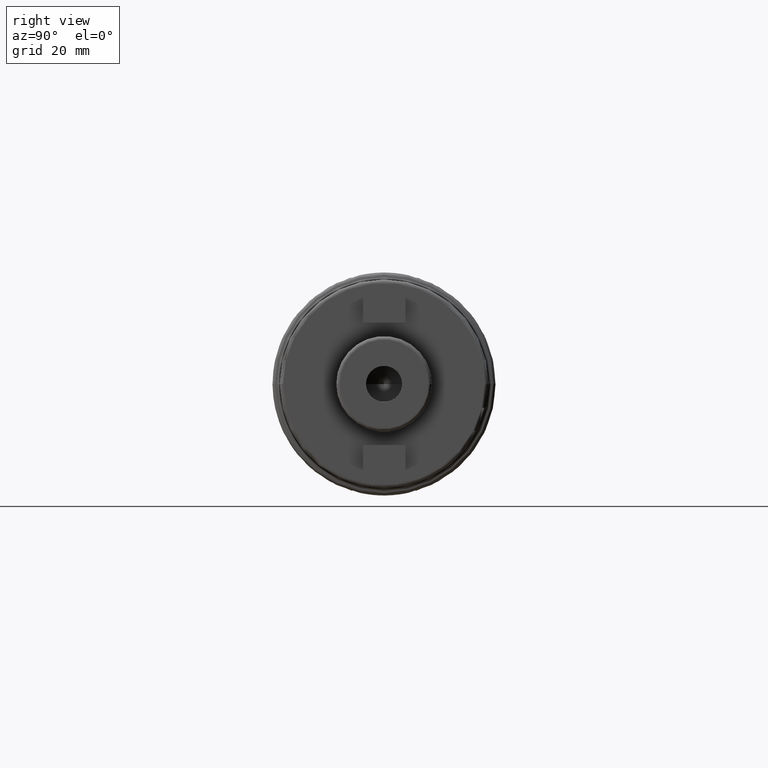
[diagram: clean part render]
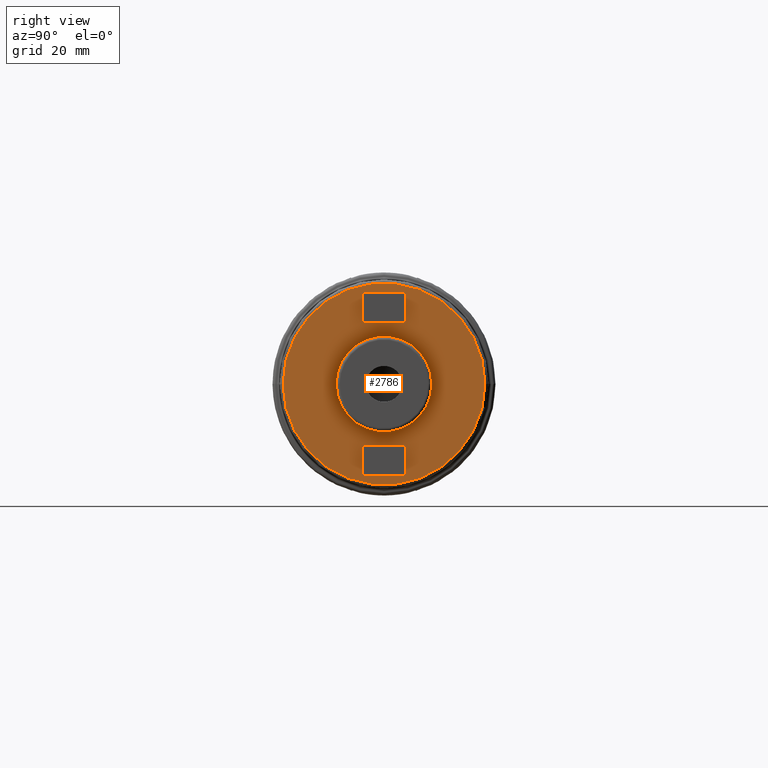
[diagram: same view with one face highlighted and labeled with its STEP entity id]
A machine part, right view. The second image highlights one B-rep face of the part: STEP entity #2786.
In plain terms, the highlighted planar face has unit normal (1, 0, 0).
Its self-contained STEP definition (entity closure, byte-faithful):
#884=CARTESIAN_POINT('',(1.E2,0.E0,0.E0));
#885=DIRECTION('',(1.E0,0.E0,0.E0));
#886=DIRECTION('',(0.E0,1.E0,0.E0));
#887=AXIS2_PLACEMENT_3D('',#884,#885,#886);
#889=CARTESIAN_POINT('',(1.E2,0.E0,0.E0));
#890=DIRECTION('',(-1.E0,0.E0,0.E0));
#891=DIRECTION('',(0.E0,1.E0,0.E0));
#892=AXIS2_PLACEMENT_3D('',#889,#890,#891);
#894=CARTESIAN_POINT('',(1.E2,0.E0,0.E0));
#895=DIRECTION('',(-1.E0,0.E0,0.E0));
#896=DIRECTION('',(0.E0,1.E0,0.E0));
#897=AXIS2_PLACEMENT_3D('',#894,#895,#896);
#899=CARTESIAN_POINT('',(1.E2,0.E0,0.E0));
#900=DIRECTION('',(-1.E0,0.E0,0.E0));
#901=DIRECTION('',(0.E0,-1.E0,0.E0));
#902=AXIS2_PLACEMENT_3D('',#899,#900,#901);
#904=DIRECTION('',(0.E0,-1.E0,0.E0));
#905=VECTOR('',#904,1.2E1);
#906=CARTESIAN_POINT('',(1.E2,6.E0,-1.725E1));
#907=LINE('',#906,#905);
#908=DIRECTION('',(0.E0,0.E0,-1.E0));
#909=VECTOR('',#908,8.5E0);
#910=CARTESIAN_POINT('',(1.E2,-6.E0,-1.725E1));
#911=LINE('',#910,#909);
#912=DIRECTION('',(0.E0,1.E0,0.E0));
#913=VECTOR('',#912,1.2E1);
#914=CARTESIAN_POINT('',(1.E2,-6.E0,-2.575E1));
#915=LINE('',#914,#913);
#916=DIRECTION('',(0.E0,0.E0,1.E0));
#917=VECTOR('',#916,8.5E0);
#918=CARTESIAN_POINT('',(1.E2,6.E0,-2.575E1));
#919=LINE('',#918,#917);
#920=DIRECTION('',(0.E0,0.E0,1.E0));
#921=VECTOR('',#920,8.5E0);
#922=CARTESIAN_POINT('',(1.E2,6.E0,1.725E1));
#923=LINE('',#922,#921);
#924=DIRECTION('',(0.E0,-1.E0,0.E0));
#925=VECTOR('',#924,1.2E1);
#926=CARTESIAN_POINT('',(1.E2,6.E0,2.575E1));
#927=LINE('',#926,#925);
#928=DIRECTION('',(0.E0,0.E0,-1.E0));
#929=VECTOR('',#928,8.5E0);
#930=CARTESIAN_POINT('',(1.E2,-6.E0,2.575E1));
#931=LINE('',#930,#929);
#932=DIRECTION('',(0.E0,1.E0,0.E0));
#933=VECTOR('',#932,1.2E1);
#934=CARTESIAN_POINT('',(1.E2,-6.E0,1.725E1));
#935=LINE('',#934,#933);
#1521=CARTESIAN_POINT('',(1.E2,1.35E1,0.E0));
#1522=CARTESIAN_POINT('',(1.E2,-1.35E1,0.E0));
#1523=VERTEX_POINT('',#1521);
#1524=VERTEX_POINT('',#1522);
#1525=CARTESIAN_POINT('',(1.E2,2.85E1,0.E0));
#1526=CARTESIAN_POINT('',(1.E2,-2.85E1,0.E0));
#1527=VERTEX_POINT('',#1525);
#1528=VERTEX_POINT('',#1526);
#1553=CARTESIAN_POINT('',(1.E2,6.E0,-1.725E1));
#1554=CARTESIAN_POINT('',(1.E2,-6.E0,-1.725E1));
#1555=VERTEX_POINT('',#1553);
#1556=VERTEX_POINT('',#1554);
#1557=CARTESIAN_POINT('',(1.E2,-6.E0,-2.575E1));
#1558=VERTEX_POINT('',#1557);
#1559=CARTESIAN_POINT('',(1.E2,6.E0,-2.575E1));
#1560=VERTEX_POINT('',#1559);
#1561=CARTESIAN_POINT('',(1.E2,6.E0,1.725E1));
#1562=CARTESIAN_POINT('',(1.E2,6.E0,2.575E1));
#1563=VERTEX_POINT('',#1561);
#1564=VERTEX_POINT('',#1562);
#1565=CARTESIAN_POINT('',(1.E2,-6.E0,2.575E1));
#1566=VERTEX_POINT('',#1565);
#1567=CARTESIAN_POINT('',(1.E2,-6.E0,1.725E1));
#1568=VERTEX_POINT('',#1567);
#2751=CARTESIAN_POINT('',(1.E2,0.E0,0.E0));
#2752=DIRECTION('',(1.E0,0.E0,0.E0));
#2753=DIRECTION('',(0.E0,-1.E0,0.E0));
#2754=AXIS2_PLACEMENT_3D('',#2751,#2752,#2753);
#2755=PLANE('',#2754);
#2756=ORIENTED_EDGE('',*,*,#2745,.T.);
#2757=ORIENTED_EDGE('',*,*,#2731,.T.);
#2758=EDGE_LOOP('',(#2756,#2757));
#2759=FACE_OUTER_BOUND('',#2758,.F.);
#2761=ORIENTED_EDGE('',*,*,#2760,.T.);
#2763=ORIENTED_EDGE('',*,*,#2762,.F.);
#2764=EDGE_LOOP('',(#2761,#2763));
#2765=FACE_BOUND('',#2764,.F.);
#2767=ORIENTED_EDGE('',*,*,#2766,.T.);
#2769=ORIENTED_EDGE('',*,*,#2768,.T.);
#2771=ORIENTED_EDGE('',*,*,#2770,.T.);
#2773=ORIENTED_EDGE('',*,*,#2772,.T.);
#2774=EDGE_LOOP('',(#2767,#2769,#2771,#2773));
#2775=FACE_BOUND('',#2774,.F.);
#2777=ORIENTED_EDGE('',*,*,#2776,.T.);
#2779=ORIENTED_EDGE('',*,*,#2778,.T.);
#2781=ORIENTED_EDGE('',*,*,#2780,.T.);
#2783=ORIENTED_EDGE('',*,*,#2782,.T.);
#2784=EDGE_LOOP('',(#2777,#2779,#2781,#2783));
#2785=FACE_BOUND('',#2784,.F.);
#2786=ADVANCED_FACE('',(#2759,#2765,#2775,#2785),#2755,.T.);
#888=CIRCLE('',#887,1.35E1);
#893=CIRCLE('',#892,1.35E1);
#898=CIRCLE('',#897,2.85E1);
#903=CIRCLE('',#902,2.85E1);
#2731=EDGE_CURVE('',#1528,#1527,#903,.T.);
#2745=EDGE_CURVE('',#1527,#1528,#898,.T.);
#2760=EDGE_CURVE('',#1523,#1524,#888,.T.);
#2762=EDGE_CURVE('',#1523,#1524,#893,.T.);
#2766=EDGE_CURVE('',#1555,#1556,#907,.T.);
#2768=EDGE_CURVE('',#1556,#1558,#911,.T.);
#2770=EDGE_CURVE('',#1558,#1560,#915,.T.);
#2772=EDGE_CURVE('',#1560,#1555,#919,.T.);
#2776=EDGE_CURVE('',#1563,#1564,#923,.T.);
#2778=EDGE_CURVE('',#1564,#1566,#927,.T.);
#2780=EDGE_CURVE('',#1566,#1568,#931,.T.);
#2782=EDGE_CURVE('',#1568,#1563,#935,.T.);